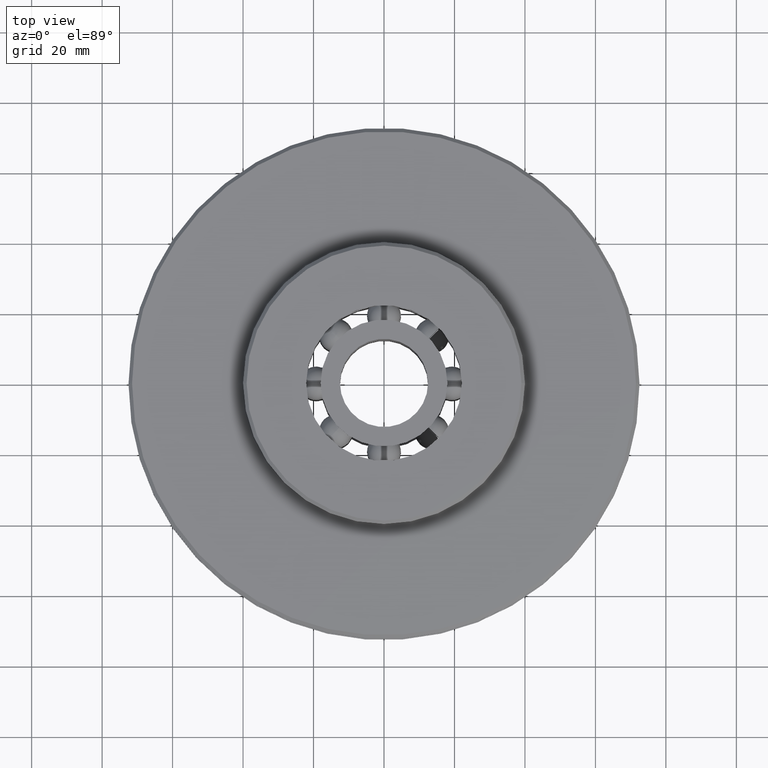
[diagram: clean part render]
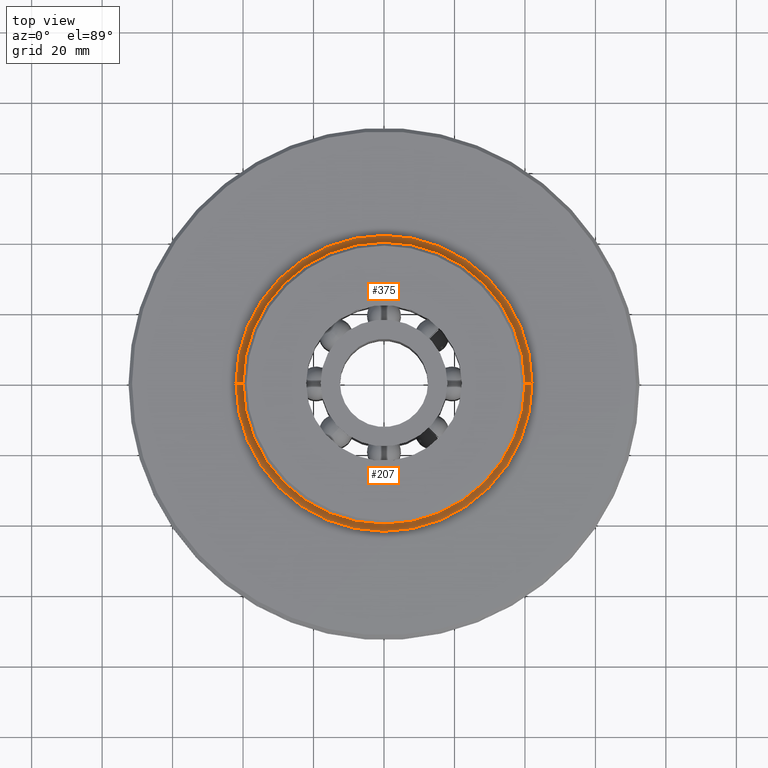
[diagram: same view with one multi-face feature highlighted, each face labeled with its STEP entity id]
A machine part, top view. The highlighted faces form ONE feature: a constant-radius fillet chain: 2 tangent blend faces with common blend radius 2 mm. The faces share edges in the B-rep.
Their STEP definitions:
[1] entity #375 (Torus):
#375=ADVANCED_FACE('',(#778),#779,.F.);
#778=FACE_OUTER_BOUND('',#1188,.T.);
#779=TOROIDAL_SURFACE('',#1189,42.0,1.99999999999998);
#1188=EDGE_LOOP('',(#2451,#2452,#2453,#2454));
#1189=AXIS2_PLACEMENT_3D('',#2455,#2456,#2457);
#2451=ORIENTED_EDGE('',*,*,#2696,.T.);
#2452=ORIENTED_EDGE('',*,*,#2693,.F.);
#2453=ORIENTED_EDGE('',*,*,#2698,.T.);
#2454=ORIENTED_EDGE('',*,*,#3078,.T.);
#2455=CARTESIAN_POINT('',(0.0,0.0,13.0));
#2456=DIRECTION('',(0.0,0.0,1.0));
#2457=DIRECTION('',(1.0,0.0,0.0));
#2693=EDGE_CURVE('',#3321,#3323,#3324,.T.);
#2696=EDGE_CURVE('',#3327,#3323,#3328,.T.);
#2698=EDGE_CURVE('',#3321,#3329,#3331,.T.);
#3078=EDGE_CURVE('',#3329,#3327,#3895,.T.);
#3321=VERTEX_POINT('',#4856);
#3323=VERTEX_POINT('',#4859);
#3324=CIRCLE('',#4860,40.0);
#3327=VERTEX_POINT('',#4864);
#3328=CIRCLE('',#4865,1.99999999999998);
#3329=VERTEX_POINT('',#4866);
#3331=CIRCLE('',#4868,1.99999999999998);
#3895=CIRCLE('',#7814,42.0);
#4856=CARTESIAN_POINT('',(40.0,0.0,13.0));
#4859=CARTESIAN_POINT('',(-40.0,4.89858719658941E-015,13.0));
#4860=AXIS2_PLACEMENT_3D('',#8018,#8019,#8020);
#4864=CARTESIAN_POINT('',(-42.0,5.14351655641888E-015,11.0));
#4865=AXIS2_PLACEMENT_3D('',#8022,#8023,#8024);
#4866=CARTESIAN_POINT('',(42.0,0.0,11.0));
#4868=AXIS2_PLACEMENT_3D('',#8028,#8029,#8030);
#7814=AXIS2_PLACEMENT_3D('',#8427,#8428,#8429);
#8018=CARTESIAN_POINT('',(0.0,0.0,13.0));
#8019=DIRECTION('',(0.0,0.0,1.0));
#8020=DIRECTION('',(1.0,0.0,0.0));
#8022=CARTESIAN_POINT('',(-42.0,5.14351655641888E-015,13.0));
#8023=DIRECTION('',(-1.22464679914735E-016,-1.0,0.0));
#8024=DIRECTION('',(-1.0,1.22464679914735E-016,-0.0));
#8028=CARTESIAN_POINT('',(42.0,-5.14351655641888E-015,13.0));
#8029=DIRECTION('',(-1.22464679914735E-016,-1.0,0.0));
#8030=DIRECTION('',(1.0,-1.22464679914735E-016,0.0));
#8427=CARTESIAN_POINT('',(0.0,0.0,11.0));
#8428=DIRECTION('',(0.0,0.0,1.0));
#8429=DIRECTION('',(1.0,0.0,0.0));
[2] entity #207 (Torus):
#207=ADVANCED_FACE('',(#505),#506,.F.);
#505=FACE_OUTER_BOUND('',#915,.T.);
#506=TOROIDAL_SURFACE('',#916,42.0,1.99999999999998);
#915=EDGE_LOOP('',(#1459,#1460,#1461,#1462));
#916=AXIS2_PLACEMENT_3D('',#1463,#1464,#1465);
#1459=ORIENTED_EDGE('',*,*,#2696,.F.);
#1460=ORIENTED_EDGE('',*,*,#2697,.T.);
#1461=ORIENTED_EDGE('',*,*,#2698,.F.);
#1462=ORIENTED_EDGE('',*,*,#2699,.F.);
#1463=CARTESIAN_POINT('',(0.0,0.0,13.0));
#1464=DIRECTION('',(0.0,0.0,1.0));
#1465=DIRECTION('',(1.0,0.0,0.0));
#2696=EDGE_CURVE('',#3327,#3323,#3328,.T.);
#2697=EDGE_CURVE('',#3327,#3329,#3330,.T.);
#2698=EDGE_CURVE('',#3321,#3329,#3331,.T.);
#2699=EDGE_CURVE('',#3323,#3321,#3332,.T.);
#3321=VERTEX_POINT('',#4856);
#3323=VERTEX_POINT('',#4859);
#3327=VERTEX_POINT('',#4864);
#3328=CIRCLE('',#4865,1.99999999999998);
#3329=VERTEX_POINT('',#4866);
#3330=CIRCLE('',#4867,42.0);
#3331=CIRCLE('',#4868,1.99999999999998);
#3332=CIRCLE('',#4869,40.0);
#4856=CARTESIAN_POINT('',(40.0,0.0,13.0));
#4859=CARTESIAN_POINT('',(-40.0,4.89858719658941E-015,13.0));
#4864=CARTESIAN_POINT('',(-42.0,5.14351655641888E-015,11.0));
#4865=AXIS2_PLACEMENT_3D('',#8022,#8023,#8024);
#4866=CARTESIAN_POINT('',(42.0,0.0,11.0));
#4867=AXIS2_PLACEMENT_3D('',#8025,#8026,#8027);
#4868=AXIS2_PLACEMENT_3D('',#8028,#8029,#8030);
#4869=AXIS2_PLACEMENT_3D('',#8031,#8032,#8033);
#8022=CARTESIAN_POINT('',(-42.0,5.14351655641888E-015,13.0));
#8023=DIRECTION('',(-1.22464679914735E-016,-1.0,0.0));
#8024=DIRECTION('',(-1.0,1.22464679914735E-016,-0.0));
#8025=CARTESIAN_POINT('',(0.0,0.0,11.0));
#8026=DIRECTION('',(0.0,0.0,1.0));
#8027=DIRECTION('',(1.0,0.0,0.0));
#8028=CARTESIAN_POINT('',(42.0,-5.14351655641888E-015,13.0));
#8029=DIRECTION('',(-1.22464679914735E-016,-1.0,0.0));
#8030=DIRECTION('',(1.0,-1.22464679914735E-016,0.0));
#8031=CARTESIAN_POINT('',(0.0,0.0,13.0));
#8032=DIRECTION('',(0.0,0.0,1.0));
#8033=DIRECTION('',(1.0,0.0,0.0));